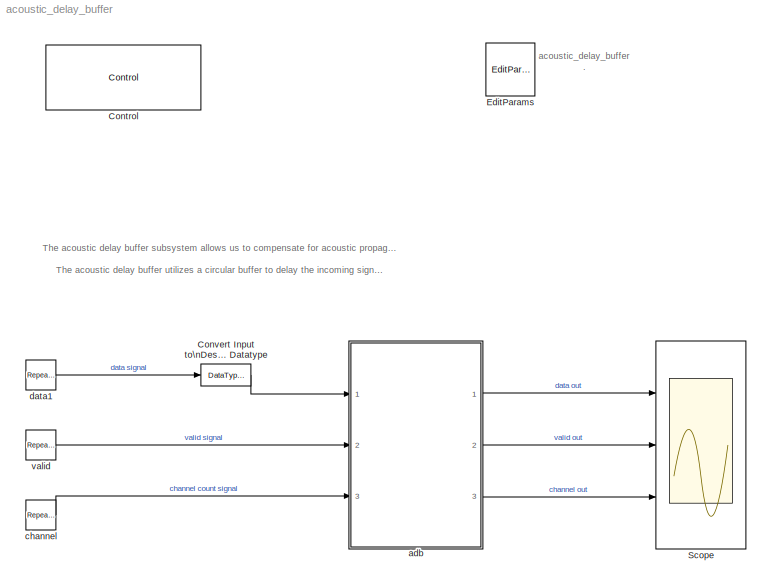
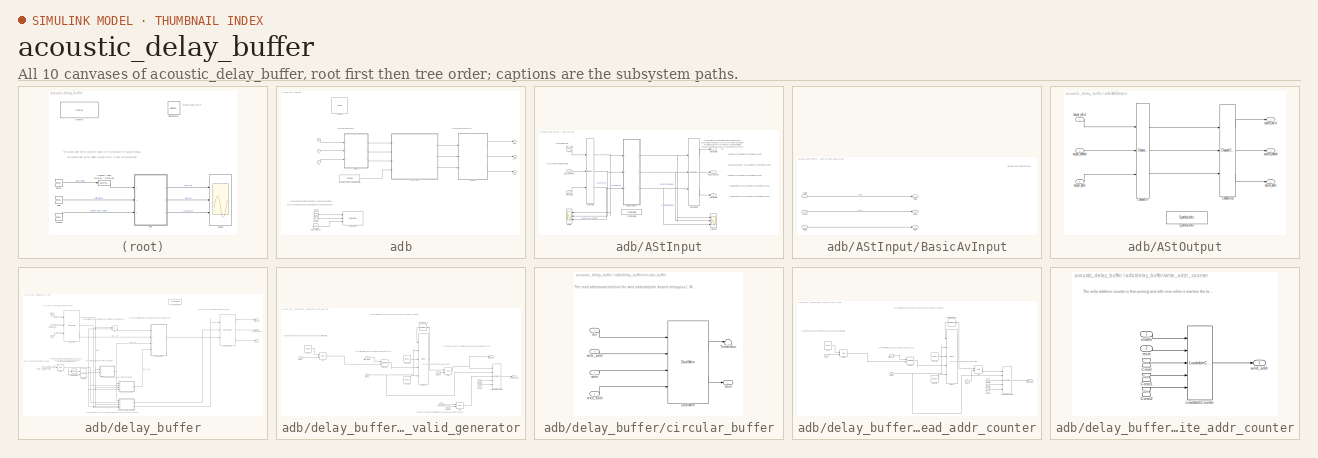
[diagram: thumbnail index - all 10 canvases of the model, root first then tree order]
MODEL acoustic_delay_buffer
KIND model
CONFIG InitFcn = % Run the setup script again just before the \n% model is run, so that any updates made\n% after opening are applied. \nsetup_acoustic_delay_buffer; 
CONFIG PreLoadFcn = % Run the setup script when the model is opened\nsetup_acoustic_delay_buffer; 
BLOCK [Reference] Control  REF=DSPBABase/Control
  MultiThreadCoSim = auto
  Ports = []
  SID = 3
  SourceBlock = DSPBABase/Control
  SourceType = DSP Builder Advanced Blockset Control Block
  addrwidth = 10
  autotestbench = off
  coveragetestbench = off
  cycleAccurate = off
  dataendian = Big Endian
  datawidth = 16
  destination = ./rtl
  destination_gui = ./rtl
  distRamThresholdBits = -1
  errorOnChanMismatch = on
  errorOnGPIOMismatch = off
  floatMismatchTolerance = -1.0
  floatMismatchZeroTolerance = -1.0
  generate = on
  hardMultiplierThresholdLuts = -1
  hierarchicalnames = off
  importModelsimResults = 0
  language = VHDL
  logs = off
  make_full_path = off
  mlabThresholdBits = -1
  paramFile = acoustic_delay_buffer_params.xml
  path_is_relative = on
  quartus_work = ../rtl
  quartus_work_gui = ../rtl
  ramThresholdBits = -1
  reinterpretCastMult = off
  signaldepth = 2
  spacenum = 1
  spacewidth = 2
  version = 20090407
BLOCK [DataTypeConversion] Convert Input to\nDesired Datatype
  OutDataTypeStr = fixdt(1,acoustic_delay_buffer_param.input_word_length,acoustic_delay_buffer_param.input_fraction_length)
  RndMeth = Floor
  SID = 4
BLOCK [Reference] EditParams  REF=DSPBABase/EditParams
  Ports = []
  SID = 5
  SourceBlock = DSPBABase/EditParams
  SourceType = DSP Builder Advanced Blockset Ignored Block
  version = 20090407
BLOCK [Scope] Scope
  Floating = off
  NumInputPorts = 3
  Ports = [3]
  SID = 207
  ScopeSpecificationString = Simulink.scopes.TimeScopeBlockCfg('CurrentConfiguration', extmgr.ConfigurationSet(extmgr.Configuration('Core','General UI',true),extmgr.Configuration('Core','Source UI',true),extmgr.Configuration('Sources','WiredSimulink',true),extmgr.Configuration('Visuals','Time Domain',true),extmgr.Configuration('Tools','Plot Navigation',true),extmgr.Configuration('Tools','Measurements',true)),'Version','2018b'...<+1ch>
BLOCK [SubSystem] adb
  Ports = [3, 3]
  RequestExecContextInheritance = off
  SID = 16
  TreatAsAtomicUnit = on
BLOCK [SubSystem] adb/AStInput
  AncestorBlock = DSPBAAvalonST/AStInput
  InitFcn = warning('off','Simulink:Commands:LoadMdlParameterizedLink');
  Ports = [3, 3]
  RequestExecContextInheritance = off
  SID = 101
  StopFcn = warning('on','Simulink:Commands:LoadMdlParameterizedLink');
BLOCK [SubSystem] adb/AStInput/BasicAvInput
  Ports = [3, 3]
  RequestExecContextInheritance = off
  SID = 101:418
BLOCK [Outport] adb/AStInput/BasicAvInput/ichan
  IconDisplay = Port number
  Port = 2
  SID = 101:470
BLOCK [Outport] adb/AStInput/BasicAvInput/idata
  IconDisplay = Port number
  Port = 3
  SID = 101:471
BLOCK [Outport] adb/AStInput/BasicAvInput/ivalid
  IconDisplay = Port number
  SID = 101:469
BLOCK [Inport] adb/AStInput/BasicAvInput/schan
  IconDisplay = Port number
  Port = 2
  SID = 101:420
BLOCK [Inport] adb/AStInput/BasicAvInput/sdata
  IconDisplay = Port number
  Port = 3
  SID = 101:422
BLOCK [Inport] adb/AStInput/BasicAvInput/svalid
  IconDisplay = Port number
  SID = 101:419
BLOCK [Reference] adb/AStInput/ChannelIn  REF=DSPBAPrim/ChannelIn
  MultiThreadCoSim = auto
  Ports = [3, 3]
  SID = 101:482
  SourceBlock = DSPBAPrim/ChannelIn
  SourceType = DSP Builder Advanced Blockset primitive
  channels = 1
  dataSignals = 1
  dspbaimage = dspba_prim.jpg
  factor = 1
  foldingEnabled = off
  inPortNames = ['v'; 'c'; '0'; '1'; '2'; '3'; '4'; '5'; '6'; '7'; '8'; '9'; 'A'; 'B'; 'D'; 'E'; 'F'; 'G'; 'H'; 'I'; 'J'; 'K'; 'L'; 'M'; 'N'; 'O'; 'P'; 'Q'; 'R'; 'S'; 'T'; 'U'; 'W'; 'X'; 'Y'; 'Z']
  latencyCorrection = 0
  nInputs = dspba_internal_get_channel_ports(gcb)
  nOutputs = dspba_internal_get_channel_ports(gcb)
  omode = Inherit via internal rule
  otype = sfix(16)
  outPortNames = ['v'; 'c'; '0'; '1'; '2'; '3'; '4'; '5'; '6'; '7'; '8'; '9'; 'A'; 'B'; 'D'; 'E'; 'F'; 'G'; 'H'; 'I'; 'J'; 'K'; 'L'; 'M'; 'N'; 'O'; 'P'; 'Q'; 'R'; 'S'; 'T'; 'U'; 'W'; 'X'; 'Y'; 'Z']
  packetBeginEnabled = off
  packetBeginPresent = off
  primtype = channelin
  rndmethod = Unbiased
  sampleRate = 200
  satmethod = Symmetric
  scale = 2^-15
  scheduleOrigin = on
  shift_vec = [0 1 2 -1]
  style = Optimised
  text = fprintf('In');
  value = 1
  version = 20141013
  visibilities = dspba_ChannelInVis(gcb)
BLOCK [Reference] adb/AStInput/ChannelOut  REF=DSPBAPrim/ChannelOut
  MultiThreadCoSim = auto
  Ports = [3, 3]
  SID = 101:483
  SourceBlock = DSPBAPrim/ChannelOut
  SourceType = DSP Builder Advanced Blockset primitive
  channels = 1
  dataSignals = 1
  dspbaimage = dspba_prim.jpg
  factor = 1
  foldingEnabled = off
  inPortNames = ['v'; 'c'; '0'; '1'; '2'; '3'; '4'; '5'; '6'; '7'; '8'; '9'; 'A'; 'B'; 'D'; 'E'; 'F'; 'G'; 'H'; 'I'; 'J'; 'K'; 'L'; 'M'; 'N'; 'O'; 'P'; 'Q'; 'R'; 'S'; 'T'; 'U'; 'W'; 'X'; 'Y'; 'Z']
  latency = 0
  latencyCorrection = 0
  nInputs = dspba_internal_get_channel_ports(gcb)
  nOutputs = dspba_internal_get_channel_ports(gcb)
  omode = Inherit via internal rule
  otype = sfix(16)
  outPortNames = ['v'; 'c'; '0'; '1'; '2'; '3'; '4'; '5'; '6'; '7'; '8'; '9'; 'A'; 'B'; 'D'; 'E'; 'F'; 'G'; 'H'; 'I'; 'J'; 'K'; 'L'; 'M'; 'N'; 'O'; 'P'; 'Q'; 'R'; 'S'; 'T'; 'U'; 'W'; 'X'; 'Y'; 'Z']
  packetBeginEnabled = off
  packetBeginPresent = off
  primtype = channelout
  rndmethod = Unbiased
  sampleRate = 200
  satmethod = Symmetric
  scale = 2^-15
  shift_vec = [0 1 2 -1]
  style = Optimised
  text = fprintf('Out%s', AdvDSPBChannelOutDisplay(latency));
  value = 1
  version = 20141013
  visibilities = dspba_ChannelOutVis(gcb)
BLOCK [Scope] adb/AStInput/Inputs
  Floating = off
  NumInputPorts = 3
  Ports = [3]
  SID = 101:485
  ScopeSpecificationString = C++SS(StrPVP('Location','[269, 186, 1069, 1038]'),StrPVP('Open','off'),StrPVP('ZoomMode','yonly'),MxPVP('AxesTitles',53,'struct(''axes1'',''%<SignalLabel>'',''axes2'',''%<SignalLabel>'',''axes3'',''%<SignalLabel>'')'),MxPVP('ScopeGraphics',56,'struct(''FigureColor'',''[0.156862745098039 0.156862745098039 0.156862745098039]'',''AxesColor'',''[0 0 0]'',''AxesTickColor'',''[0.686274509803922 0.686274...<+487ch>
BLOCK [Scope] adb/AStInput/Latched
  Floating = off
  NumInputPorts = 3
  Ports = [3]
  SID = 101:486
  ScopeSpecificationString = C++SS(StrPVP('Location','[5, 48, 1605, 1159]'),StrPVP('Open','off'),MxPVP('AxesTitles',53,'struct(''axes1'',''%<SignalLabel>'',''axes2'',''%<SignalLabel>'',''axes3'',''%<SignalLabel>'')'),MxPVP('ScopeGraphics',56,'struct(''FigureColor'',''[0.156862745098039 0.156862745098039 0.156862745098039]'',''AxesColor'',''[0 0 0]'',''AxesTickColor'',''[0.686274509803922 0.686274509803922 0.686274509803922]''...<+458ch>
BLOCK [Reference] adb/AStInput/SynthesisInfo  REF=DSPBAPrim/SynthesisInfo
  MultiThreadCoSim = auto
  Ports = []
  SID = 101:487
  SourceBlock = DSPBAPrim/SynthesisInfo
  SourceType = DSP Builder Advanced Blockset primitive
  bitAccurate = off
  constraintInUse = on
  constraintLimit = 0
  constraintRelation = =
  dspbaimage = dspba_prim_ctrl.jpg
  factor = 1
  inPortNames = [' '; ' ';]
  nInputs = 0
  nOutputs = 0
  omode = Inherit via internal rule
  otype = sfix(16)
  outPortNames = [' ']
  primtype = synthinfo
  rndmethod = Truncate
  satmethod = Symmetric
  scale = 2^-15
  shift_vec = [0 1 2 -1]
  style = Scheduled
  text = fprintf('Style=%s', style);
  value = 99
  version = 20150220
  visibilities = 32768
BLOCK [Outport] adb/AStInput/input_channel
  AttributesFormatString = %<Tag>
  IconDisplay = Port number
  Port = 2
  SID = 101:490
  Tag = channel
BLOCK [Outport] adb/AStInput/input_data
  AttributesFormatString = %<Tag>
  IconDisplay = Port number
  Port = 3
  SID = 101:491
  Tag = data
BLOCK [Outport] adb/AStInput/input_valid
  AttributesFormatString = %<Tag>
  IconDisplay = Port number
  SID = 101:489
  Tag = valid
BLOCK [Inport] adb/AStInput/sink_channel
  AttributesFormatString = %<Tag>
  IconDisplay = Port number
  Port = 2
  SID = 101:414
  Tag = channel
BLOCK [Inport] adb/AStInput/sink_data
  AttributesFormatString = %<Tag>
  IconDisplay = Port number
  Port = 3
  SID = 101:415
  Tag = data
BLOCK [Inport] adb/AStInput/sink_valid
  AttributesFormatString = %<Tag>
  IconDisplay = Port number
  SID = 101:413
  Tag = valid
BLOCK [SubSystem] adb/AStOutput
  AncestorBlock = DSPBAAvalonST/AStOutput
  InitFcn = warning('off','Simulink:Commands:LoadMdlParameterizedLink');
  Ports = [3, 3]
  RequestExecContextInheritance = off
  SID = 102
  StopFcn = warning('on','Simulink:Commands:LoadMdlParameterizedLink');
BLOCK [Reference] adb/AStOutput/ChannelIn  REF=DSPBAPrim/ChannelIn
  MultiThreadCoSim = auto
  Ports = [3, 3]
  SID = 102:344
  SourceBlock = DSPBAPrim/ChannelIn
  SourceType = DSP Builder Advanced Blockset primitive
  channels = 1
  dataSignals = 1
  dspbaimage = dspba_prim.jpg
  factor = 1
  foldingEnabled = off
  inPortNames = ['v'; 'c'; '0'; '1'; '2'; '3'; '4'; '5'; '6'; '7'; '8'; '9'; 'A'; 'B'; 'D'; 'E'; 'F'; 'G'; 'H'; 'I'; 'J'; 'K'; 'L'; 'M'; 'N'; 'O'; 'P'; 'Q'; 'R'; 'S'; 'T'; 'U'; 'W'; 'X'; 'Y'; 'Z']
  latencyCorrection = 0
  nInputs = dspba_internal_get_channel_ports(gcb)
  nOutputs = dspba_internal_get_channel_ports(gcb)
  omode = Inherit via internal rule
  otype = sfix(16)
  outPortNames = ['v'; 'c'; '0'; '1'; '2'; '3'; '4'; '5'; '6'; '7'; '8'; '9'; 'A'; 'B'; 'D'; 'E'; 'F'; 'G'; 'H'; 'I'; 'J'; 'K'; 'L'; 'M'; 'N'; 'O'; 'P'; 'Q'; 'R'; 'S'; 'T'; 'U'; 'W'; 'X'; 'Y'; 'Z']
  packetBeginEnabled = off
  packetBeginPresent = off
  primtype = channelin
  rndmethod = Unbiased
  sampleRate = 200
  satmethod = Symmetric
  scale = 2^-15
  scheduleOrigin = on
  shift_vec = [0 1 2 -1]
  style = Optimised
  text = fprintf('In');
  value = 1
  version = 20141013
  visibilities = dspba_ChannelInVis(gcb)
BLOCK [Reference] adb/AStOutput/ChannelOut  REF=DSPBAPrim/ChannelOut
  MultiThreadCoSim = auto
  Ports = [3, 3]
  SID = 102:345
  SourceBlock = DSPBAPrim/ChannelOut
  SourceType = DSP Builder Advanced Blockset primitive
  channels = 1
  dataSignals = 1
  dspbaimage = dspba_prim.jpg
  factor = 1
  foldingEnabled = off
  inPortNames = ['v'; 'c'; '0'; '1'; '2'; '3'; '4'; '5'; '6'; '7'; '8'; '9'; 'A'; 'B'; 'D'; 'E'; 'F'; 'G'; 'H'; 'I'; 'J'; 'K'; 'L'; 'M'; 'N'; 'O'; 'P'; 'Q'; 'R'; 'S'; 'T'; 'U'; 'W'; 'X'; 'Y'; 'Z']
  latency = 0
  latencyCorrection = 0
  nInputs = dspba_internal_get_channel_ports(gcb)
  nOutputs = dspba_internal_get_channel_ports(gcb)
  omode = Inherit via internal rule
  otype = sfix(16)
  outPortNames = ['v'; 'c'; '0'; '1'; '2'; '3'; '4'; '5'; '6'; '7'; '8'; '9'; 'A'; 'B'; 'D'; 'E'; 'F'; 'G'; 'H'; 'I'; 'J'; 'K'; 'L'; 'M'; 'N'; 'O'; 'P'; 'Q'; 'R'; 'S'; 'T'; 'U'; 'W'; 'X'; 'Y'; 'Z']
  packetBeginEnabled = off
  packetBeginPresent = off
  primtype = channelout
  rndmethod = Unbiased
  sampleRate = 200
  satmethod = Symmetric
  scale = 2^-15
  shift_vec = [0 1 2 -1]
  style = Optimised
  text = fprintf('Out%s', AdvDSPBChannelOutDisplay(latency));
  value = 1
  version = 20141013
  visibilities = dspba_ChannelOutVis(gcb)
BLOCK [Reference] adb/AStOutput/SynthesisInfo  REF=DSPBAPrim/SynthesisInfo
  MultiThreadCoSim = auto
  Ports = []
  SID = 102:348
  SourceBlock = DSPBAPrim/SynthesisInfo
  SourceType = DSP Builder Advanced Blockset primitive
  bitAccurate = off
  constraintInUse = on
  constraintLimit = 0
  constraintRelation = =
  dspbaimage = dspba_prim_ctrl.jpg
  factor = 1
  inPortNames = [' '; ' ';]
  nInputs = 0
  nOutputs = 0
  omode = Inherit via internal rule
  otype = sfix(16)
  outPortNames = [' ']
  primtype = synthinfo
  rndmethod = Truncate
  satmethod = Symmetric
  scale = 2^-15
  shift_vec = [0 1 2 -1]
  style = Scheduled
  text = fprintf('Style=%s', style);
  value = 99
  version = 20150220
  visibilities = 32768
BLOCK [Inport] adb/AStOutput/output_channel
  AttributesFormatString = %<Tag>
  IconDisplay = Port number
  Port = 2
  SID = 102:338
  Tag = channel
BLOCK [Inport] adb/AStOutput/output_data
  AttributesFormatString = %<Tag>
  IconDisplay = Port number
  Port = 3
  SID = 102:339
  Tag = data
BLOCK [Inport] adb/AStOutput/output_valid
  AttributesFormatString = %<Tag>
  IconDisplay = Port number
  SID = 102:337
  Tag = valid
BLOCK [Outport] adb/AStOutput/source_channel
  AttributesFormatString = %<Tag>
  IconDisplay = Port number
  Port = 2
  SID = 102:365
  Tag = channel
BLOCK [Outport] adb/AStOutput/source_data
  AttributesFormatString = %<Tag>
  IconDisplay = Port number
  Port = 3
  SID = 102:366
  Tag = data
BLOCK [Outport] adb/AStOutput/source_valid
  AttributesFormatString = %<Tag>
  IconDisplay = Port number
  SID = 102:364
  Tag = valid
BLOCK [Reference] adb/Const6  REF=DSPBAPrim/Const
  Commented = on
  MultiThreadCoSim = auto
  Ports = [0, 1]
  SID = 149
  SourceBlock = DSPBAPrim/Const
  SourceType = DSP Builder Advanced Blockset primitive
  dspbaimage = dspba_prim.jpg
  factor = 1
  floatPrecision = float32_m23
  inPortNames = ['+'; '+';]
  nInputs = 0
  nOutputs = 1
  omode = Inherit via internal rule
  otype = sfix(16)
  outPortNames = [' ']
  primtype = const
  rndmethod = Unbiased
  satmethod = Symmetric
  scale = 2^-15
  shift_vec = [0 1 2 -1]
  style = Optimised
  text = fprintf('%s', num2str(value));
  value = 0
  version = 20120820
  visibilities = 8 + 1024
BLOCK [Reference] adb/Const7  REF=DSPBAPrim/Const
  Commented = on
  MultiThreadCoSim = auto
  Ports = [0, 1]
  SID = 154
  SourceBlock = DSPBAPrim/Const
  SourceType = DSP Builder Advanced Blockset primitive
  dspbaimage = dspba_prim.jpg
  factor = 1
  floatPrecision = float32_m23
  inPortNames = ['+'; '+';]
  nInputs = 0
  nOutputs = 1
  omode = Inherit via back propagation
  otype = ufix(12)
  outPortNames = [' ']
  primtype = const
  rndmethod = Unbiased
  satmethod = Symmetric
  scale = 2^-15
  shift_vec = [0 1 2 -1]
  style = Optimised
  text = fprintf('%s', num2str(value));
  value = 5
  version = 20120820
  visibilities = 8 + 1024
BLOCK [Reference] adb/Device  REF=DSPBABase/Device
  Ports = []
  SID = 21
  SourceBlock = DSPBABase/Device
  SourceType = DSP Builder Advanced Blockset Device Block
  arria2Speed = -4
  arria2gzSpeed = -3
  arria5Speed = -4
  arriaSpeed = -6
  cyclone2Speed = -6
  cyclone3Speed = -7
  cyclone3lsSpeed = -7
  cyclone4eSpeed = -8
  cyclone5Speed = -6
  device = AUTO
  deviceMember = Stratix IV GX
  ecp2Speed = -7
  family = Arria 10
  hardcopy4device = HardCopy IV E
  hardcopycompat = off
  max10flashmode = off
  max10nomeminit = off
  nightFurySpeed = -2
  speed = -2
  stratix2Speed = -3
  stratix3Speed = -3
  stratix4device = Stratix IV GX
  stratix4gtSpeed = -1
  stratix4gxSpeed = -2
  stratix5Speed = -3
  stratix5device = Stratix V GX
  stratixSpeed = -5
  version = 20140217
BLOCK [Reference] adb/SharedMem  REF=DSPBAModelBus/SharedMem
  Commented = on
  MultiThreadCoSim = auto
  Ports = [3, 1]
  SID = 148
  SampleTime = -1
  SourceBlock = DSPBAModelBus/SharedMem
  SourceType = DSP Builder Advanced Blockset SharedMem
  mem_addr = 0
  mem_data = 0
  mem_desc = Number of samples of delay to compensate for acoustic propagation delay
  mem_init = on
  mem_mode = Specify via dialog
  mem_rwmode = Read/Write
  mem_scale = 1
  mem_type = ufix(acoustic_delay_buffer_param.addr_size)
  version = 20090407
BLOCK [Reference] adb/acoustic_delay_compensation  REF=DSPBAModelBus/RegField
  MultiThreadCoSim = auto
  Ports = [0, 1]
  SID = 208
  SampleTime = -1
  SourceBlock = DSPBAModelBus/RegField
  SourceType = DSP Builder Advanced Blockset RegField
  reg_addr = 0
  reg_desc = Number of samples of delay to compensate for acoustic propagation delay
  reg_desc0 = 0
  reg_desc1 = 0
  reg_desc2 = 0
  reg_desc3 = 0
  reg_desc4 = 0
  reg_desc5 = 0
  reg_desc6 = 0
  reg_desc7 = 0
  reg_init = 0
  reg_lsb = 0
  reg_modal = off
  reg_mode = Specify via dialog
  reg_msb = acoustic_delay_buffer_param.addr_size - 1
  reg_name = 0
  reg_rwmode = Read/Write
  reg_scale = 1
  reg_type = ufix(acoustic_delay_buffer_param.addr_size)
  version = 20090407
BLOCK [Inport] adb/c
  IconDisplay = Port number
  Port = 3
  SID = 19
BLOCK [Outport] adb/cout
  IconDisplay = Port number
  Port = 3
  SID = 28
BLOCK [Inport] adb/d
  IconDisplay = Port number
  SID = 17
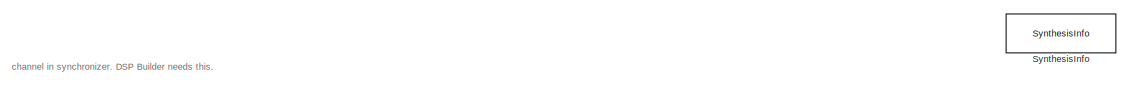
[diagram: adb/delay_buffer - part 1/3, top center region]
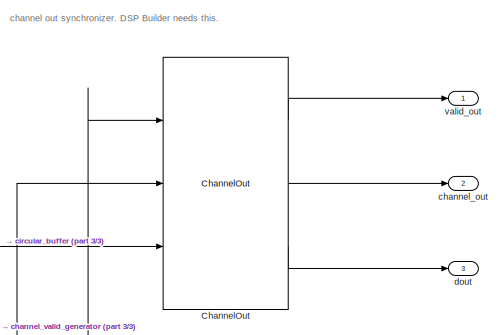
[diagram: adb/delay_buffer - part 2/3, top right region]
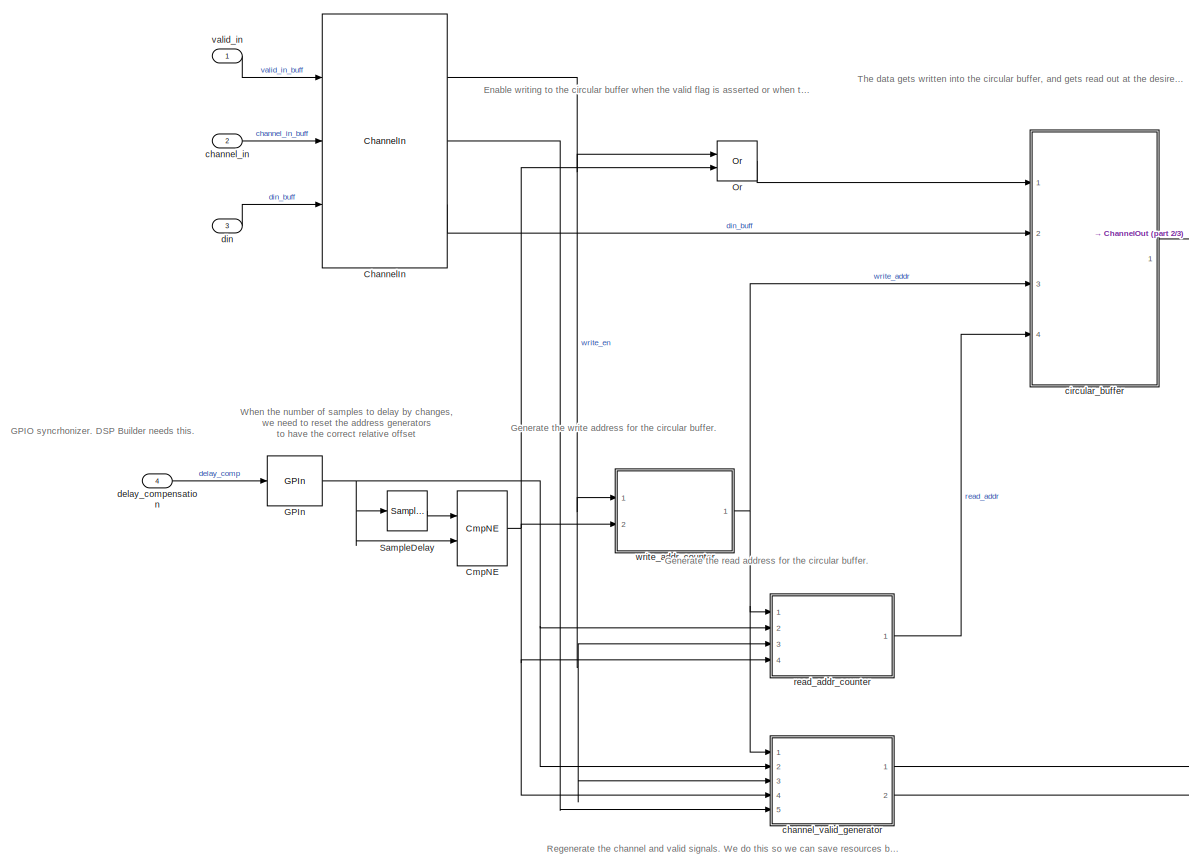
[diagram: adb/delay_buffer - part 3/3, left side, full height]
BLOCK [SubSystem] adb/delay_buffer
  Ports = [4, 3]
  RequestExecContextInheritance = off
  SID = 44
BLOCK [Reference] adb/delay_buffer/ChannelIn  REF=DSPBAPrim/ChannelIn
  MultiThreadCoSim = auto
  Ports = [3, 3]
  SID = 59
  SourceBlock = DSPBAPrim/ChannelIn
  SourceType = DSP Builder Advanced Blockset primitive
  channels = 1
  dataSignals = 1
  dspbaimage = dspba_prim.jpg
  factor = 1
  foldingEnabled = off
  inPortNames = ['v'; 'c'; '0'; '1'; '2'; '3'; '4'; '5'; '6'; '7'; '8'; '9'; 'A'; 'B'; 'D'; 'E'; 'F'; 'G'; 'H'; 'I'; 'J'; 'K'; 'L'; 'M'; 'N'; 'O'; 'P'; 'Q'; 'R'; 'S'; 'T'; 'U'; 'W'; 'X'; 'Y'; 'Z']
  latencyCorrection = 0
  nInputs = dspba_internal_get_channel_ports(gcb)
  nOutputs = dspba_internal_get_channel_ports(gcb)
  omode = Inherit via internal rule
  otype = sfix(16)
  outPortNames = ['v'; 'c'; '0'; '1'; '2'; '3'; '4'; '5'; '6'; '7'; '8'; '9'; 'A'; 'B'; 'D'; 'E'; 'F'; 'G'; 'H'; 'I'; 'J'; 'K'; 'L'; 'M'; 'N'; 'O'; 'P'; 'Q'; 'R'; 'S'; 'T'; 'U'; 'W'; 'X'; 'Y'; 'Z']
  packetBeginEnabled = off
  packetBeginPresent = off
  primtype = channelin
  rndmethod = Unbiased
  sampleRate = 200
  satmethod = Symmetric
  scale = 2^-15
  scheduleOrigin = on
  shift_vec = [0 1 2 -1]
  style = Optimised
  text = fprintf('In');
  value = 1
  version = 20141013
  visibilities = dspba_ChannelInVis(gcb)
BLOCK [Reference] adb/delay_buffer/ChannelOut  REF=DSPBAPrim/ChannelOut
  MultiThreadCoSim = auto
  Ports = [3, 3]
  SID = 60
  SourceBlock = DSPBAPrim/ChannelOut
  SourceType = DSP Builder Advanced Blockset primitive
  channels = 1
  dataSignals = 1
  dspbaimage = dspba_prim.jpg
  factor = 1
  foldingEnabled = off
  inPortNames = ['v'; 'c'; '0'; '1'; '2'; '3'; '4'; '5'; '6'; '7'; '8'; '9'; 'A'; 'B'; 'D'; 'E'; 'F'; 'G'; 'H'; 'I'; 'J'; 'K'; 'L'; 'M'; 'N'; 'O'; 'P'; 'Q'; 'R'; 'S'; 'T'; 'U'; 'W'; 'X'; 'Y'; 'Z']
  latency = 6
  latencyCorrection = 0
  nInputs = dspba_internal_get_channel_ports(gcb)
  nOutputs = dspba_internal_get_channel_ports(gcb)
  omode = Inherit via internal rule
  otype = sfix(16)
  outPortNames = ['v'; 'c'; '0'; '1'; '2'; '3'; '4'; '5'; '6'; '7'; '8'; '9'; 'A'; 'B'; 'D'; 'E'; 'F'; 'G'; 'H'; 'I'; 'J'; 'K'; 'L'; 'M'; 'N'; 'O'; 'P'; 'Q'; 'R'; 'S'; 'T'; 'U'; 'W'; 'X'; 'Y'; 'Z']
  packetBeginEnabled = off
  packetBeginPresent = off
  primtype = channelout
  rndmethod = Unbiased
  sampleRate = 200
  satmethod = Symmetric
  scale = 2^-15
  shift_vec = [0 1 2 -1]
  style = Optimised
  text = fprintf('Out%s', AdvDSPBChannelOutDisplay(latency));
  value = 1
  version = 20141013
  visibilities = dspba_ChannelOutVis(gcb)
BLOCK [Reference] adb/delay_buffer/CmpNE  REF=DSPBAPrim/CmpNE
  MultiThreadCoSim = auto
  Ports = [2, 1]
  SID = 128
  SourceBlock = DSPBAPrim/CmpNE
  SourceType = DSP Builder Advanced Blockset primitive
  advOptions = []
  dspbaimage = dspba_prim.jpg
  factor = 1
  inPortNames = [' '; ' ';]
  nInputs = 2
  nOutputs = 1
  omode = boolean
  otype = sfix(16)
  outPortNames = [' ']
  primtype = cmpne
  rndmethod = Unbiased
  satmethod = Symmetric
  scale = 2^-15
  shift_vec = [0 1 2 -1]
  style = Optimised
  text = fprintf('~=');
  value = 0
  version = 20130117
  visibilities = 0
BLOCK [Reference] adb/delay_buffer/GPIn  REF=DSPBAPrim/GPIn
  MultiThreadCoSim = auto
  Ports = [1, 1]
  SID = 99
  SourceBlock = DSPBAPrim/GPIn
  SourceType = DSP Builder Advanced Blockset primitive
  dspbaimage = dspba_prim.jpg
  factor = 1
  inPortNames = [' ' ' ' ' ' ' ' ' ' ' ' ' ' ' ' ' ' ' ' ' ' ' ' ' ' ' ' ' ' ' ' ' ' ' ' ' ' ' ' ' ' ' ' ' ' ' ' ' ' ' ' ' ' ' ' ' ' ' ' ' ' ' ' ' ' ' ' ' ']'
  latencyCorrection = 0
  nInputs = evalAionMaskParam(gcb,'value',1)
  nOutputs = evalAionMaskParam(gcb,'value',1)
  omode = Inherit via internal rule
  otype = sfix(16)
  outPortNames = [' ' ' ' ' ' ' ' ' ' ' ' ' ' ' ' ' ' ' ' ' ' ' ' ' ' ' ' ' ' ' ' ' ' ' ' ' ' ' ' ' ' ' ' ' ' ' ' ' ' ' ' ' ' ' ' ' ' ' ' ' ' ' ' ' ' ' ' ' ']'
  primtype = gpin
  rndmethod = Unbiased
  satmethod = Symmetric
  scale = 2^-15
  scheduleOrigin = on
  shift_vec = [0 1 2 -1]
  style = Optimised
  text = fprintf('GPIn');
  value = 1
  version = 20090407
  visibilities = 1024
BLOCK [Reference] adb/delay_buffer/Or  REF=DSPBAPrim/Or
  MultiThreadCoSim = auto
  Ports = [2, 1]
  SID = 188
  SourceBlock = DSPBAPrim/Or
  SourceType = DSP Builder Advanced Blockset primitive
  dspbaimage = dspba_prim.jpg
  factor = 1
  inPortNames = [' '; ' '; ' '; ' '; ' '; ' '; ' '; ' '; ' '; ' '; ' '; ' '; ' '; ' '; ' '; ' '; ]
  nInputs = 2
  nOutputs = 1
  omode = Inherit via internal rule
  otype = sfix(16)
  outPortNames = [' ']
  primtype = or
  rndmethod = Unbiased
  satmethod = Symmetric
  scale = 2^-15
  shift_vec = [0 1 2 -1]
  style = Optimised
  text = fprintf('|');
  value = 0
  version = 20090407
  visibilities = 8+2
BLOCK [Reference] adb/delay_buffer/SampleDelay  REF=DSPBAPrim/SampleDelay
  MultiThreadCoSim = auto
  Ports = [1, 1]
  SID = 129
  SourceBlock = DSPBAPrim/SampleDelay
  SourceType = DSP Builder Advanced Blockset primitive
  advOptions = []
  augmented = 0
  dspbaimage = dspba_prim.jpg
  factor = 1
  flexible = off
  inPortNames = [' '; ' ';]
  nInputs = 1
  nOutputs = 1
  omode = Inherit via internal rule
  otype = sfix(16)
  outPortNames = [' ']
  primtype = sampdelay
  rndmethod = Unbiased
  satmethod = Symmetric
  scale = 2^-15
  shift_vec = [0 1 2 -1]
  slackgroup = 0
  style = Optimised
  text = dpoly(1, eye(1,value+1), 'z')
  value = 1
  version = 20090407
  visibilities = 8 + 1024 + 2^17 + 2^18
BLOCK [Reference] adb/delay_buffer/SynthesisInfo  REF=DSPBAPrim/SynthesisInfo
  MultiThreadCoSim = auto
  Ports = []
  SID = 94
  SourceBlock = DSPBAPrim/SynthesisInfo
  SourceType = DSP Builder Advanced Blockset primitive
  bitAccurate = off
  constraintInUse = off
  constraintLimit = 2
  constraintRelation = >
  dspbaimage = dspba_prim_ctrl.jpg
  factor = 1
  inPortNames = [' '; ' ';]
  nInputs = 0
  nOutputs = 0
  omode = Inherit via internal rule
  otype = sfix(16)
  outPortNames = [' ']
  primtype = synthinfo
  rndmethod = Truncate
  satmethod = Symmetric
  scale = 2^-15
  shift_vec = [0 1 2 -1]
  style = Scheduled
  text = fprintf('Style=%s', style);
  value = 99
  version = 20150220
  visibilities = 2^17+2^18+2^19+2^20
BLOCK [Inport] adb/delay_buffer/channel_in
  IconDisplay = Port number
  Port = 2
  SID = 53
BLOCK [Outport] adb/delay_buffer/channel_out
  IconDisplay = Port number
  Port = 2
  SID = 55
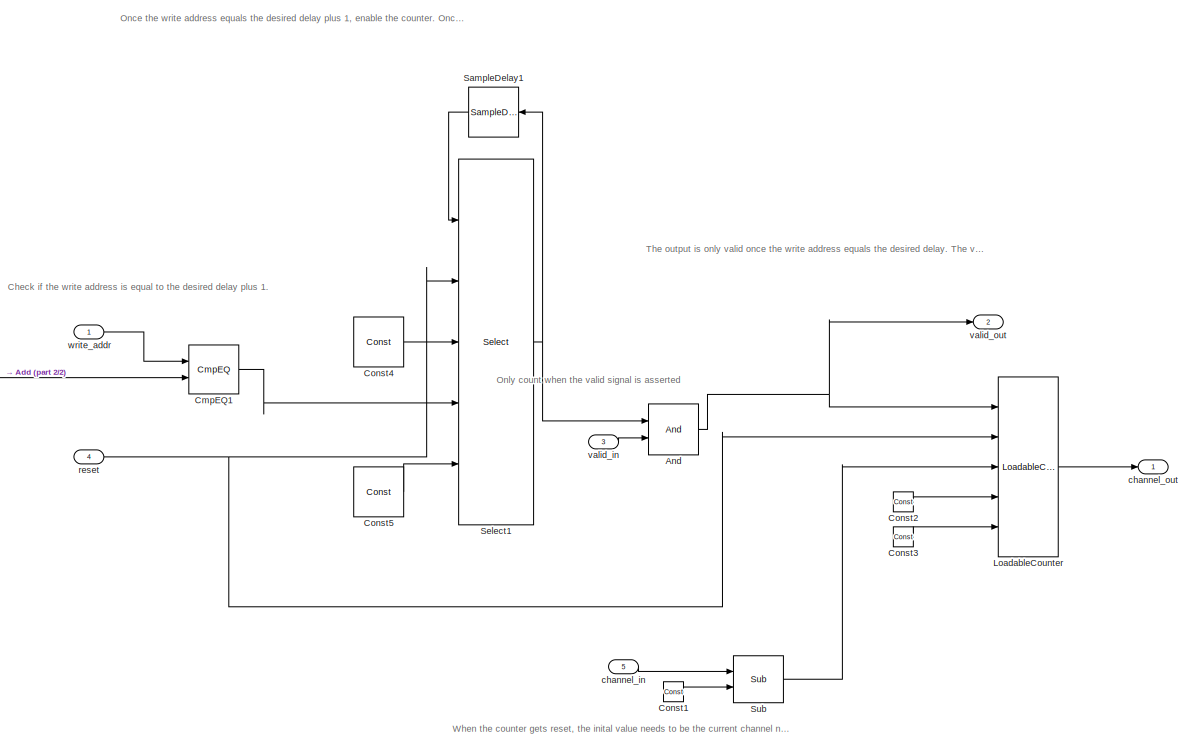
[diagram: adb/delay_buffer/channel_valid_generator - part 1/2, center side, full height]
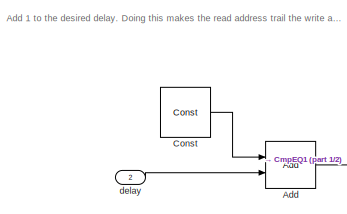
[diagram: adb/delay_buffer/channel_valid_generator - part 2/2, middle left region]
BLOCK [SubSystem] adb/delay_buffer/channel_valid_generator
  Ports = [5, 2]
  RequestExecContextInheritance = off
  SID = 83
BLOCK [Reference] adb/delay_buffer/channel_valid_generator/Add  REF=DSPBAPrim/Add
  MultiThreadCoSim = auto
  Ports = [2, 1]
  SID = 195
  SourceBlock = DSPBAPrim/Add
  SourceType = DSP Builder Advanced Blockset primitive
  advOptions = []
  dspbaimage = dspba_prim.jpg
  factor = 1
  floatRounding = correct
  genFPC = off
  inPortNames = [' '; ' ';]
  nInputs = evalAionMaskParam(gcb,'value',1)
  nOutputs = 1
  omode = Inherit via internal rule with word growth
  otype = sfix(16)
  outPortNames = [' ']
  primtype = add
  rndmethod = Unbiased
  satmethod = Symmetric
  scale = 2^-15
  shift_vec = [0 1 2 -1]
  style = Optimised
  text = fprintf('+');
  value = 2
  version = 20130821
  visibilities = 1032+2^17+2^18+2^19
BLOCK [Reference] adb/delay_buffer/channel_valid_generator/And  REF=DSPBAPrim/And
  MultiThreadCoSim = auto
  Ports = [2, 1]
  SID = 171
  SourceBlock = DSPBAPrim/And
  SourceType = DSP Builder Advanced Blockset primitive
  dspbaimage = dspba_prim.jpg
  factor = 1
  inPortNames = [' '; ' '; ' '; ' '; ' '; ' '; ' '; ' '; ' '; ' '; ' '; ' '; ' '; ' '; ' '; ' '; ]
  nInputs = 2
  nOutputs = 1
  omode = Inherit via internal rule
  otype = sfix(16)
  outPortNames = [' ']
  primtype = and
  rndmethod = Unbiased
  satmethod = Symmetric
  scale = 2^-15
  shift_vec = [0 1 2 -1]
  style = Optimised
  text = fprintf('&');
  value = 0
  version = 20090407
  visibilities = 8+2
BLOCK [Reference] adb/delay_buffer/channel_valid_generator/CmpEQ1  REF=DSPBAPrim/CmpEQ
  MultiThreadCoSim = auto
  Ports = [2, 1]
  SID = 172
  SourceBlock = DSPBAPrim/CmpEQ
  SourceType = DSP Builder Advanced Blockset primitive
  advOptions = []
  dspbaimage = dspba_prim.jpg
  factor = 1
  inPortNames = [' '; ' ';]
  nInputs = 2
  nOutputs = 1
  omode = boolean
  otype = sfix(16)
  outPortNames = [' ']
  primtype = cmpeq
  rndmethod = Unbiased
  satmethod = Symmetric
  scale = 2^-15
  shift_vec = [0 1 2 -1]
  style = Optimised
  text = fprintf('==');
  value = 0
  version = 20130117
  visibilities = 0
BLOCK [Reference] adb/delay_buffer/channel_valid_generator/Const  REF=DSPBAPrim/Const
  MultiThreadCoSim = auto
  Ports = [0, 1]
  SID = 197
  SourceBlock = DSPBAPrim/Const
  SourceType = DSP Builder Advanced Blockset primitive
  dspbaimage = dspba_prim.jpg
  factor = 1
  floatPrecision = float32_m23
  inPortNames = ['+'; '+';]
  nInputs = 0
  nOutputs = 1
  omode = Inherit via internal rule
  otype = sfix(16)
  outPortNames = [' ']
  primtype = const
  rndmethod = Unbiased
  satmethod = Symmetric
  scale = 2^-15
  shift_vec = [0 1 2 -1]
  style = Optimised
  text = fprintf('%s', num2str(value));
  value = 1
  version = 20120820
  visibilities = 8 + 1024
BLOCK [Reference] adb/delay_buffer/channel_valid_generator/Const1  REF=DSPBAPrim/Const
  MultiThreadCoSim = auto
  Ports = [0, 1]
  SID = 203
  SourceBlock = DSPBAPrim/Const
  SourceType = DSP Builder Advanced Blockset primitive
  dspbaimage = dspba_prim.jpg
  factor = 1
  floatPrecision = float32_m23
  inPortNames = ['+'; '+';]
  nInputs = 0
  nOutputs = 1
  omode = Specify via dialog
  otype = uint(8)
  outPortNames = [' ']
  primtype = const
  rndmethod = Unbiased
  satmethod = Symmetric
  scale = 1
  shift_vec = [0 1 2 -1]
  style = Optimised
  text = fprintf('%s', num2str(value));
  value = 1
  version = 20120820
  visibilities = 8 + 1024
BLOCK [Reference] adb/delay_buffer/channel_valid_generator/Const2  REF=DSPBAPrim/Const
  MultiThreadCoSim = auto
  Ports = [0, 1]
  SID = 144
  SourceBlock = DSPBAPrim/Const
  SourceType = DSP Builder Advanced Blockset primitive
  dspbaimage = dspba_prim.jpg
  factor = 1
  floatPrecision = float32_m23
  inPortNames = ['+'; '+';]
  nInputs = 0
  nOutputs = 1
  omode = Inherit via internal rule
  otype = sfix(16)
  outPortNames = [' ']
  primtype = const
  rndmethod = Unbiased
  satmethod = Symmetric
  scale = 2^-15
  shift_vec = [0 1 2 -1]
  style = Optimised
  text = fprintf('%s', num2str(value));
  value = 1
  version = 20120820
  visibilities = 8 + 1024
BLOCK [Reference] adb/delay_buffer/channel_valid_generator/Const3  REF=DSPBAPrim/Const
  MultiThreadCoSim = auto
  Ports = [0, 1]
  SID = 145
  SourceBlock = DSPBAPrim/Const
  SourceType = DSP Builder Advanced Blockset primitive
  dspbaimage = dspba_prim.jpg
  factor = 1
  floatPrecision = float32_m23
  inPortNames = ['+'; '+';]
  nInputs = 0
  nOutputs = 1
  omode = Inherit via internal rule
  otype = sfix(16)
  outPortNames = [' ']
  primtype = const
  rndmethod = Unbiased
  satmethod = Symmetric
  scale = 2^-15
  shift_vec = [0 1 2 -1]
  style = Optimised
  text = fprintf('%s', num2str(value));
  value = acoustic_delay_buffer_param.ChanCount
  version = 20120820
  visibilities = 8 + 1024
BLOCK [Reference] adb/delay_buffer/channel_valid_generator/Const4  REF=DSPBAPrim/Const
  MultiThreadCoSim = auto
  Ports = [0, 1]
  SID = 173
  SourceBlock = DSPBAPrim/Const
  SourceType = DSP Builder Advanced Blockset primitive
  dspbaimage = dspba_prim.jpg
  factor = 1
  floatPrecision = float32_m23
  inPortNames = ['+'; '+';]
  nInputs = 0
  nOutputs = 1
  omode = Inherit via internal rule
  otype = sfix(16)
  outPortNames = [' ']
  primtype = const
  rndmethod = Unbiased
  satmethod = Symmetric
  scale = 2^-15
  shift_vec = [0 1 2 -1]
  style = Optimised
  text = fprintf('%s', num2str(value));
  value = 0
  version = 20120820
  visibilities = 8 + 1024
BLOCK [Reference] adb/delay_buffer/channel_valid_generator/Const5  REF=DSPBAPrim/Const
  MultiThreadCoSim = auto
  Ports = [0, 1]
  SID = 174
  SourceBlock = DSPBAPrim/Const
  SourceType = DSP Builder Advanced Blockset primitive
  dspbaimage = dspba_prim.jpg
  factor = 1
  floatPrecision = float32_m23
  inPortNames = ['+'; '+';]
  nInputs = 0
  nOutputs = 1
  omode = Inherit via internal rule
  otype = sfix(16)
  outPortNames = [' ']
  primtype = const
  rndmethod = Unbiased
  satmethod = Symmetric
  scale = 2^-15
  shift_vec = [0 1 2 -1]
  style = Optimised
  text = fprintf('%s', num2str(value));
  value = 1
  version = 20120820
  visibilities = 8 + 1024
BLOCK [Reference] adb/delay_buffer/channel_valid_generator/LoadableCounter  REF=DSPBAPrim/LoadableCounter
  MultiThreadCoSim = auto
  Ports = [5, 1]
  SID = 142
  SourceBlock = DSPBAPrim/LoadableCounter
  SourceType = DSP Builder Advanced Blockset primitive
  dspbaimage = dspba_prim.jpg
  factor = 1
  inPortNames = ['en';'ld';'i ';'s ';'m ']
  nInputs = 5
  nOutputs = 1
  omode = Specify via dialog
  otype = ufix(8)
  outPortNames = [' ']
  primtype = loadablecounter
  rndmethod = Unbiased
  satmethod = Symmetric
  scale = 2^-0
  shift_vec = [0 1 2 -1]
  style = Optimised
  text = fprintf('loadable\\ncounter\\n[%d %d %d]', value(1), value(2), value(3));
  value = [acoustic_delay_buffer_param.ChanCount - 1 acoustic_delay_buffer_param.ChanCount 1]
  version = 20090407
  visibilities = 8 + 1024
BLOCK [Reference] adb/delay_buffer/channel_valid_generator/SampleDelay1  REF=DSPBAPrim/SampleDelay
  MultiThreadCoSim = auto
  Ports = [1, 1]
  SID = 175
  SourceBlock = DSPBAPrim/SampleDelay
  SourceType = DSP Builder Advanced Blockset primitive
  advOptions = []
  augmented = 0
  dspbaimage = dspba_prim.jpg
  factor = 1
  flexible = off
  inPortNames = [' '; ' ';]
  nInputs = 1
  nOutputs = 1
  omode = Inherit via internal rule
  otype = sfix(16)
  outPortNames = [' ']
  primtype = sampdelay
  rndmethod = Unbiased
  satmethod = Symmetric
  scale = 2^-15
  shift_vec = [0 1 2 -1]
  slackgroup = 0
  style = Optimised
  text = dpoly(1, eye(1,value+1), 'z')
  value = 1
  version = 20090407
  visibilities = 8 + 1024 + 2^17 + 2^18
BLOCK [Reference] adb/delay_buffer/channel_valid_generator/Select1  REF=DSPBAPrim/Select
  MultiThreadCoSim = auto
  Ports = [5, 1]
  SID = 176
  SourceBlock = DSPBAPrim/Select
  SourceType = DSP Builder Advanced Blockset primitive
  dspbaimage = dspba_prim.jpg
  factor = 1
  inPortNames = ['d'; '0'; 'a'; '1'; 'b'; '2'; 'c'; '3'; 'd'; '4'; 'e'; '5'; 'f'; '6'; 'g'; '7'; 'h'; '8'; 'i'; '9'; 'j']
  nInputs = str2num(get_param(gcb,'value'))*2+1
  nOutputs = 1
  omode = boolean
  otype = sfix(16)
  outPortNames = [' ']
  primtype = select
  rndmethod = Unbiased
  satmethod = Symmetric
  scale = 2^-15
  shift_vec = [0 1 2 -1]
  style = Optimised
  text = fprintf('%s', primtype);
  value = 2
  version = 20090407
  visibilities = 8 + 1024
BLOCK [Reference] adb/delay_buffer/channel_valid_generator/Sub  REF=DSPBAPrim/Sub
  MultiThreadCoSim = auto
  Ports = [2, 1]
  SID = 202
  SourceBlock = DSPBAPrim/Sub
  SourceType = DSP Builder Advanced Blockset primitive
  advOptions = []
  dspbaimage = dspba_prim.jpg
  factor = 1
  floatRounding = correct
  inPortNames = ['+'; '-';]
  nInputs = 2
  nOutputs = 1
  omode = Inherit via internal rule
  otype = sfix(16)
  outPortNames = [' ']
  primtype = sub
  rndmethod = Unbiased
  satmethod = Symmetric
  scale = 2^-15
  shift_vec = [0 1 2 -1]
  style = Optimised
  text = fprintf('-');
  value = 0
  version = 20130115
  visibilities = 8+2^17+2^18
BLOCK [Inport] adb/delay_buffer/channel_valid_generator/channel_in
  IconDisplay = Port number
  Port = 5
  SID = 146
BLOCK [Outport] adb/delay_buffer/channel_valid_generator/channel_out
  IconDisplay = Port number
  SID = 90
BLOCK [Inport] adb/delay_buffer/channel_valid_generator/delay
  IconDisplay = Port number
  Port = 2
  SID = 85
BLOCK [Inport] adb/delay_buffer/channel_valid_generator/reset
  IconDisplay = Port number
  Port = 4
  SID = 143
BLOCK [Inport] adb/delay_buffer/channel_valid_generator/valid_in
  IconDisplay = Port number
  Port = 3
  SID = 169
BLOCK [Outport] adb/delay_buffer/channel_valid_generator/valid_out
  IconDisplay = Port number
  Port = 2
  SID = 91
BLOCK [Inport] adb/delay_buffer/channel_valid_generator/write_addr
  IconDisplay = Port number
  SID = 84
BLOCK [SubSystem] adb/delay_buffer/circular_buffer
  Ports = [4, 1]
  RequestExecContextInheritance = off
  SID = 74
BLOCK [Reference] adb/delay_buffer/circular_buffer/DualMem  REF=DSPBAPrim/DualMem
  MultiThreadCoSim = auto
  Ports = [4, 2]
  SID = 43
  SourceBlock = DSPBAPrim/DualMem
  SourceType = DSP Builder Advanced Blockset primitive
  TwinWritePorts = off
  UseDontCare = on
  dspbaimage = dspba_prim.jpg
  factor = 1
  inPortNames = ['d1'; 'a1'; 'w1'; 'a2']
  nInputs = 4
  nOutputs = 2
  omode = Inherit via internal rule
  otype = sfix(16)
  outPortNames = ['q1'; 'q2']
  primtype = dualmem
  rndmethod = Unbiased
  satmethod = Symmetric
  scale = 2^-15
  shift_vec = [0 1 2 -1]
  style = Optimised
  text = fprintf('dmem%s',AdvDSPBDMemDisplay(UseDontCare));
  value = [zeros(acoustic_delay_buffer_param.buffer_size, 1)]
  version = 20141001
  visibilities = 8 + 1024 + 2^17 + 2^18
BLOCK [Terminator] adb/delay_buffer/circular_buffer/Terminator
  SID = 81
BLOCK [Inport] adb/delay_buffer/circular_buffer/din
  IconDisplay = Port number
  Port = 2
  SID = 76
BLOCK [Outport] adb/delay_buffer/circular_buffer/dout
  IconDisplay = Port number
  SID = 80
BLOCK [Inport] adb/delay_buffer/circular_buffer/read_addr
  IconDisplay = Port number
  Port = 4
  SID = 78
BLOCK [Inport] adb/delay_buffer/circular_buffer/write
  IconDisplay = Port number
  SID = 75
BLOCK [Inport] adb/delay_buffer/circular_buffer/write_addr
  IconDisplay = Port number
  Port = 3
  SID = 77
BLOCK [Inport] adb/delay_buffer/delay_compensation
  IconDisplay = Port number
  Port = 4
  SID = 58
BLOCK [Inport] adb/delay_buffer/din
  IconDisplay = Port number
  Port = 3
  SID = 45
BLOCK [Outport] adb/delay_buffer/dout
  IconDisplay = Port number
  Port = 3
  SID = 50
BLOCK [SubSystem] adb/delay_buffer/read_addr_counter
  Ports = [4, 1]
  RequestExecContextInheritance = off
  SID = 65
BLOCK [Reference] adb/delay_buffer/read_addr_counter/Add  REF=DSPBAPrim/Add
  MultiThreadCoSim = auto
  Ports = [2, 1]
  SID = 190
  SourceBlock = DSPBAPrim/Add
  SourceType = DSP Builder Advanced Blockset primitive
  advOptions = []
  dspbaimage = dspba_prim.jpg
  factor = 1
  floatRounding = correct
  genFPC = off
  inPortNames = [' '; ' ';]
  nInputs = evalAionMaskParam(gcb,'value',1)
  nOutputs = 1
  omode = Inherit via internal rule with word growth
  otype = sfix(16)
  outPortNames = [' ']
  primtype = add
  rndmethod = Unbiased
  satmethod = Symmetric
  scale = 2^-15
  shift_vec = [0 1 2 -1]
  style = Optimised
  text = fprintf('+');
  value = 2
  version = 20130821
  visibilities = 1032+2^17+2^18+2^19
BLOCK [Reference] adb/delay_buffer/read_addr_counter/And  REF=DSPBAPrim/And
  MultiThreadCoSim = auto
  Ports = [2, 1]
  SID = 117
  SourceBlock = DSPBAPrim/And
  SourceType = DSP Builder Advanced Blockset primitive
  dspbaimage = dspba_prim.jpg
  factor = 1
  inPortNames = [' '; ' '; ' '; ' '; ' '; ' '; ' '; ' '; ' '; ' '; ' '; ' '; ' '; ' '; ' '; ' '; ]
  nInputs = 2
  nOutputs = 1
  omode = Inherit via internal rule
  otype = sfix(16)
  outPortNames = [' ']
  primtype = and
  rndmethod = Unbiased
  satmethod = Symmetric
  scale = 2^-15
  shift_vec = [0 1 2 -1]
  style = Optimised
  text = fprintf('&');
  value = 0
  version = 20090407
  visibilities = 8+2
BLOCK [Reference] adb/delay_buffer/read_addr_counter/CmpEQ  REF=DSPBAPrim/CmpEQ
  MultiThreadCoSim = auto
  Ports = [2, 1]
  SID = 71
  SourceBlock = DSPBAPrim/CmpEQ
  SourceType = DSP Builder Advanced Blockset primitive
  advOptions = []
  dspbaimage = dspba_prim.jpg
  factor = 1
  inPortNames = [' '; ' ';]
  nInputs = 2
  nOutputs = 1
  omode = boolean
  otype = sfix(16)
  outPortNames = [' ']
  primtype = cmpeq
  rndmethod = Unbiased
  satmethod = Symmetric
  scale = 2^-15
  shift_vec = [0 1 2 -1]
  style = Optimised
  text = fprintf('==');
  value = 0
  version = 20130117
  visibilities = 0
BLOCK [Reference] adb/delay_buffer/read_addr_counter/Const  REF=DSPBAPrim/Const
  MultiThreadCoSim = auto
  Ports = [0, 1]
  SID = 191
  SourceBlock = DSPBAPrim/Const
  SourceType = DSP Builder Advanced Blockset primitive
  dspbaimage = dspba_prim.jpg
  factor = 1
  floatPrecision = float32_m23
  inPortNames = ['+'; '+';]
  nInputs = 0
  nOutputs = 1
  omode = Inherit via internal rule
  otype = sfix(16)
  outPortNames = [' ']
  primtype = const
  rndmethod = Unbiased
  satmethod = Symmetric
  scale = 2^-15
  shift_vec = [0 1 2 -1]
  style = Optimised
  text = fprintf('%s', num2str(value));
  value = 1
  version = 20120820
  visibilities = 8 + 1024
BLOCK [Reference] adb/delay_buffer/read_addr_counter/Const1  REF=DSPBAPrim/Const
  MultiThreadCoSim = auto
  Ports = [0, 1]
  SID = 115
  SourceBlock = DSPBAPrim/Const
  SourceType = DSP Builder Advanced Blockset primitive
  dspbaimage = dspba_prim.jpg
  factor = 1
  floatPrecision = float32_m23
  inPortNames = ['+'; '+';]
  nInputs = 0
  nOutputs = 1
  omode = Inherit via internal rule
  otype = sfix(16)
  outPortNames = [' ']
  primtype = const
  rndmethod = Unbiased
  satmethod = Symmetric
  scale = 2^-15
  shift_vec = [0 1 2 -1]
  style = Optimised
  text = fprintf('%s', num2str(value));
  value = 0
  version = 20120820
  visibilities = 8 + 1024
BLOCK [Reference] adb/delay_buffer/read_addr_counter/Const2  REF=DSPBAPrim/Const
  MultiThreadCoSim = auto
  Ports = [0, 1]
  SID = 135
  SourceBlock = DSPBAPrim/Const
  SourceType = DSP Builder Advanced Blockset primitive
  dspbaimage = dspba_prim.jpg
  factor = 1
  floatPrecision = float32_m23
  inPortNames = ['+'; '+';]
  nInputs = 0
  nOutputs = 1
  omode = Inherit via internal rule
  otype = sfix(16)
  outPortNames = [' ']
  primtype = const
  rndmethod = Unbiased
  satmethod = Symmetric
  scale = 2^-15
  shift_vec = [0 1 2 -1]
  style = Optimised
  text = fprintf('%s', num2str(value));
  value = acoustic_delay_buffer_param.buffer_size - 1
  version = 20120820
  visibilities = 8 + 1024
BLOCK [Reference] adb/delay_buffer/read_addr_counter/Const3  REF=DSPBAPrim/Const
  MultiThreadCoSim = auto
  Ports = [0, 1]
  SID = 136
  SourceBlock = DSPBAPrim/Const
  SourceType = DSP Builder Advanced Blockset primitive
  dspbaimage = dspba_prim.jpg
  factor = 1
  floatPrecision = float32_m23
  inPortNames = ['+'; '+';]
  nInputs = 0
  nOutputs = 1
  omode = Inherit via internal rule
  otype = sfix(16)
  outPortNames = [' ']
  primtype = const
  rndmethod = Unbiased
  satmethod = Symmetric
  scale = 2^-15
  shift_vec = [0 1 2 -1]
  style = Optimised
  text = fprintf('%s', num2str(value));
  value = 1
  version = 20120820
  visibilities = 8 + 1024
BLOCK [Reference] adb/delay_buffer/read_addr_counter/Const4  REF=DSPBAPrim/Const
  MultiThreadCoSim = auto
  Ports = [0, 1]
  SID = 137
  SourceBlock = DSPBAPrim/Const
  SourceType = DSP Builder Advanced Blockset primitive
  dspbaimage = dspba_prim.jpg
  factor = 1
  floatPrecision = float32_m23
  inPortNames = ['+'; '+';]
  nInputs = 0
  nOutputs = 1
  omode = Inherit via internal rule
  otype = sfix(16)
  outPortNames = [' ']
  primtype = const
  rndmethod = Unbiased
  satmethod = Symmetric
  scale = 2^-15
  shift_vec = [0 1 2 -1]
  style = Optimised
  text = fprintf('%s', num2str(value));
  value = acoustic_delay_buffer_param.buffer_size
  version = 20120820
  visibilities = 8 + 1024
BLOCK [Reference] adb/delay_buffer/read_addr_counter/Const5  REF=DSPBAPrim/Const
  MultiThreadCoSim = auto
  Ports = [0, 1]
  SID = 165
  SourceBlock = DSPBAPrim/Const
  SourceType = DSP Builder Advanced Blockset primitive
  dspbaimage = dspba_prim.jpg
  factor = 1
  floatPrecision = float32_m23
  inPortNames = ['+'; '+';]
  nInputs = 0
  nOutputs = 1
  omode = Inherit via internal rule
  otype = sfix(16)
  outPortNames = [' ']
  primtype = const
  rndmethod = Unbiased
  satmethod = Symmetric
  scale = 2^-15
  shift_vec = [0 1 2 -1]
  style = Optimised
  text = fprintf('%s', num2str(value));
  value = 1
  version = 20120820
  visibilities = 8 + 1024
BLOCK [Reference] adb/delay_buffer/read_addr_counter/LoadableCounter  REF=DSPBAPrim/LoadableCounter
  MultiThreadCoSim = auto
  Ports = [5, 1]
  SID = 138
  SourceBlock = DSPBAPrim/LoadableCounter
  SourceType = DSP Builder Advanced Blockset primitive
  dspbaimage = dspba_prim.jpg
  factor = 1
  inPortNames = ['en';'ld';'i ';'s ';'m ']
  nInputs = 5
  nOutputs = 1
  omode = Inherit via internal rule
  otype = ufix(16)
  outPortNames = [' ']
  primtype = loadablecounter
  rndmethod = Unbiased
  satmethod = Symmetric
  scale = 2^-0
  shift_vec = [0 1 2 -1]
  style = Optimised
  text = fprintf('loadable\\ncounter\\n[%d %d %d]', value(1), value(2), value(3));
  value = [acoustic_delay_buffer_param.buffer_size - 1 acoustic_delay_buffer_param.buffer_size 1]
  version = 20090407
  visibilities = 8 + 1024
BLOCK [Reference] adb/delay_buffer/read_addr_counter/SampleDelay1  REF=DSPBAPrim/SampleDelay
  MultiThreadCoSim = auto
  Ports = [1, 1]
  SID = 166
  SourceBlock = DSPBAPrim/SampleDelay
  SourceType = DSP Builder Advanced Blockset primitive
  advOptions = []
  augmented = 0
  dspbaimage = dspba_prim.jpg
  factor = 1
  flexible = off
  inPortNames = [' '; ' ';]
  nInputs = 1
  nOutputs = 1
  omode = Inherit via internal rule
  otype = sfix(16)
  outPortNames = [' ']
  primtype = sampdelay
  rndmethod = Unbiased
  satmethod = Symmetric
  scale = 2^-15
  shift_vec = [0 1 2 -1]
  slackgroup = 0
  style = Optimised
  text = dpoly(1, eye(1,value+1), 'z')
  value = 1
  version = 20090407
  visibilities = 8 + 1024 + 2^17 + 2^18
BLOCK [Reference] adb/delay_buffer/read_addr_counter/Select  REF=DSPBAPrim/Select
  MultiThreadCoSim = auto
  Ports = [5, 1]
  SID = 112
  SourceBlock = DSPBAPrim/Select
  SourceType = DSP Builder Advanced Blockset primitive
  dspbaimage = dspba_prim.jpg
  factor = 1
  inPortNames = ['d'; '0'; 'a'; '1'; 'b'; '2'; 'c'; '3'; 'd'; '4'; 'e'; '5'; 'f'; '6'; 'g'; '7'; 'h'; '8'; 'i'; '9'; 'j']
  nInputs = str2num(get_param(gcb,'value'))*2+1
  nOutputs = 1
  omode = boolean
  otype = sfix(16)
  outPortNames = [' ']
  primtype = select
  rndmethod = Unbiased
  satmethod = Symmetric
  scale = 2^-15
  shift_vec = [0 1 2 -1]
  style = Optimised
  text = fprintf('%s', primtype);
  value = 2
  version = 20090407
  visibilities = 8 + 1024
BLOCK [Inport] adb/delay_buffer/read_addr_counter/delay
  IconDisplay = Port number
  Port = 2
  SID = 70
BLOCK [Outport] adb/delay_buffer/read_addr_counter/read_addr
  IconDisplay = Port number
  SID = 68
BLOCK [Inport] adb/delay_buffer/read_addr_counter/reset
  IconDisplay = Port number
  Port = 4
  SID = 139
BLOCK [Inport] adb/delay_buffer/read_addr_counter/valid_in
  IconDisplay = Port number
  Port = 3
  SID = 72
BLOCK [Inport] adb/delay_buffer/read_addr_counter/write_addr
  IconDisplay = Port number
  SID = 69
BLOCK [Inport] adb/delay_buffer/valid_in
  IconDisplay = Port number
  SID = 54
BLOCK [Outport] adb/delay_buffer/valid_out
  IconDisplay = Port number
  SID = 56
BLOCK [SubSystem] adb/delay_buffer/write_addr_counter
  Ports = [2, 1]
  RequestExecContextInheritance = off
  SID = 62
BLOCK [Reference] adb/delay_buffer/write_addr_counter/Const  REF=DSPBAPrim/Const
  MultiThreadCoSim = auto
  Ports = [0, 1]
  SID = 131
  SourceBlock = DSPBAPrim/Const
  SourceType = DSP Builder Advanced Blockset primitive
  dspbaimage = dspba_prim.jpg
  factor = 1
  floatPrecision = float32_m23
  inPortNames = ['+'; '+';]
  nInputs = 0
  nOutputs = 1
  omode = Inherit via internal rule
  otype = sfix(16)
  outPortNames = [' ']
  primtype = const
  rndmethod = Unbiased
  satmethod = Symmetric
  scale = 2^-15
  shift_vec = [0 1 2 -1]
  style = Optimised
  text = fprintf('%s', num2str(value));
  value = 0
  version = 20120820
  visibilities = 8 + 1024
BLOCK [Reference] adb/delay_buffer/write_addr_counter/Const1  REF=DSPBAPrim/Const
  MultiThreadCoSim = auto
  Ports = [0, 1]
  SID = 132
  SourceBlock = DSPBAPrim/Const
  SourceType = DSP Builder Advanced Blockset primitive
  dspbaimage = dspba_prim.jpg
  factor = 1
  floatPrecision = float32_m23
  inPortNames = ['+'; '+';]
  nInputs = 0
  nOutputs = 1
  omode = Inherit via internal rule
  otype = sfix(16)
  outPortNames = [' ']
  primtype = const
  rndmethod = Unbiased
  satmethod = Symmetric
  scale = 2^-15
  shift_vec = [0 1 2 -1]
  style = Optimised
  text = fprintf('%s', num2str(value));
  value = 1
  version = 20120820
  visibilities = 8 + 1024
BLOCK [Reference] adb/delay_buffer/write_addr_counter/Const2  REF=DSPBAPrim/Const
  MultiThreadCoSim = auto
  Ports = [0, 1]
  SID = 133
  SourceBlock = DSPBAPrim/Const
  SourceType = DSP Builder Advanced Blockset primitive
  dspbaimage = dspba_prim.jpg
  factor = 1
  floatPrecision = float32_m23
  inPortNames = ['+'; '+';]
  nInputs = 0
  nOutputs = 1
  omode = Inherit via internal rule
  otype = sfix(16)
  outPortNames = [' ']
  primtype = const
  rndmethod = Unbiased
  satmethod = Symmetric
  scale = 2^-15
  shift_vec = [0 1 2 -1]
  style = Optimised
  text = fprintf('%s', num2str(value));
  value = acoustic_delay_buffer_param.buffer_size
  version = 20120820
  visibilities = 8 + 1024
BLOCK [Reference] adb/delay_buffer/write_addr_counter/LoadableCounter  REF=DSPBAPrim/LoadableCounter
  MultiThreadCoSim = auto
  Ports = [5, 1]
  SID = 130
  SourceBlock = DSPBAPrim/LoadableCounter
  SourceType = DSP Builder Advanced Blockset primitive
  dspbaimage = dspba_prim.jpg
  factor = 1
  inPortNames = ['en';'ld';'i ';'s ';'m ']
  nInputs = 5
  nOutputs = 1
  omode = Inherit via internal rule
  otype = ufix(16)
  outPortNames = [' ']
  primtype = loadablecounter
  rndmethod = Unbiased
  satmethod = Symmetric
  scale = 2^-0
  shift_vec = [0 1 2 -1]
  style = Optimised
  text = fprintf('loadable\\ncounter\\n[%d %d %d]', value(1), value(2), value(3));
  value = [acoustic_delay_buffer_param.buffer_size-1 acoustic_delay_buffer_param.buffer_size 1]
  version = 20090407
  visibilities = 8 + 1024
BLOCK [Inport] adb/delay_buffer/write_addr_counter/enable
  IconDisplay = Port number
  SID = 63
BLOCK [Inport] adb/delay_buffer/write_addr_counter/reset
  IconDisplay = Port number
  Port = 2
  SID = 134
BLOCK [Outport] adb/delay_buffer/write_addr_counter/write_addr
  IconDisplay = Port number
  SID = 64
BLOCK [Reference] adb/delay_write_en  REF=simulink/Sources/Repeating\nSequence\nStair
  Commented = on
  ConRadixGroup = Best Precision: Vector-wise
  LockScale = off
  OutDataType = fixdt('boolean')
  OutDataTypeStr = fixdt('boolean')
  OutMax = []
  OutMin = []
  OutScaling = []
  OutValues = [zeros(1,acoustic_delay_buffer_param.endTime/4), 1, zeros(1, 3/4*acoustic_delay_buffer_param.endTime - 1)]
  OutputDataTypeScalingMode = Specify via dialog
  Ports = [0, 1]
  SID = 152
  SourceBlock = simulink/Sources/Repeating\nSequence\nStair
  SourceProductBaseCode = SL
  SourceProductName = Simulink
  SourceType = Repeating Sequence Stair
  tsamp = acoustic_delay_buffer_param.ClockCycle
BLOCK [Outport] adb/dout
  IconDisplay = Port number
  SID = 26
BLOCK [Inport] adb/v
  IconDisplay = Port number
  Port = 2
  SID = 18
BLOCK [Outport] adb/vout
  IconDisplay = Port number
  Port = 2
  SID = 27
BLOCK [Reference] channel  REF=simulink/Sources/Repeating\nSequence\nStair
  ConRadixGroup = Best Precision: Vector-wise
  LockScale = off
  OutDataType = uint8
  OutDataTypeStr = uint8
  OutMax = []
  OutMin = []
  OutScaling = 2^-12
  OutValues = acoustic_delay_buffer_param.chan_stim
  OutputDataTypeScalingMode = uint8
  Ports = [0, 1]
  SID = 14
  SourceBlock = simulink/Sources/Repeating\nSequence\nStair
  SourceProductBaseCode = SL
  SourceProductName = Simulink
  SourceType = Repeating Sequence Stair
  tsamp = acoustic_delay_buffer_param.ClockCycle
BLOCK [Reference] data1  REF=simulink/Sources/Repeating\nSequence\nStair
  ConRadixGroup = Best Precision: Vector-wise
  LockScale = off
  OutDataType = fixdt('sfix16_En15')
  OutDataTypeStr = Inherit: Inherit via back propagation
  OutMax = []
  OutMin = []
  OutScaling = []
  OutValues = acoustic_delay_buffer_param.input_data
  OutputDataTypeScalingMode = Inherit via back propagation
  Ports = [0, 1]
  SID = 15
  SourceBlock = simulink/Sources/Repeating\nSequence\nStair
  SourceProductBaseCode = SL
  SourceProductName = Simulink
  SourceType = Repeating Sequence Stair
  tsamp = acoustic_delay_buffer_param.ClockCycle
BLOCK [Reference] valid  REF=simulink/Sources/Repeating\nSequence\nStair
  ConRadixGroup = Best Precision: Vector-wise
  LockScale = off
  OutDataType = fixdt('boolean')
  OutDataTypeStr = fixdt('boolean')
  OutMax = []
  OutMin = []
  OutScaling = []
  OutValues = [1, zeros(1, acoustic_delay_buffer_param.SampleTime-1)]
  OutputDataTypeScalingMode = Specify via dialog
  Ports = [0, 1]
  SID = 30
  SourceBlock = simulink/Sources/Repeating\nSequence\nStair
  SourceProductBaseCode = SL
  SourceProductName = Simulink
  SourceType = Repeating Sequence Stair
  tsamp = acoustic_delay_buffer_param.ClockCycle
ANNOTATION (root): The acoustic delay buffer subsystem allows us to compensate for acoustic propagation delay from the source to the receiving microphone array. The acoustic propagation delay to each microhpone array is likely to be different; each array will have an acoustic delay buffer, so we can compensate for all of them. \n\nThe acoustic delay buffer utilizes a circular buffer to delay the incoming signals.
ANNOTATION (root): \nacoustic_delay_buffer\n .
ANNOTATION adb: \n \n For use in simulink simulation to verify that the system reacts appropriately \n to a change in register value. Modelsim simulation apparently didn't support this, \n so the device level testbench was failing.
ANNOTATION adb: Avalon streaming input/sink.
ANNOTATION adb: Avalon streaming output/source
ANNOTATION adb/AStInput: Input Channel number - passed into the core DSP Builder design
ANNOTATION adb/AStInput: Input Data - passed into the core DSP Builder design
ANNOTATION adb/AStInput: Input End Of Packet - passed into the core DSP Builder design
ANNOTATION adb/AStInput: Input Start Of Packet - passed into the core DSP Builder design
ANNOTATION adb/AStInput: Input Valid - passed into the core DSP Builder design
ANNOTATION adb/AStInput: The channel count of the input data
ANNOTATION adb/AStInput: The input data is valid
ANNOTATION adb/AStInput: This signal feeds an output of the design and is linked back \nupstream to provide back-pressure. When ther DSP Builder\npart of the design here can no longer acept new data this \nsignal drops low. This should occur when the FIFOs are nearly\nfull.
ANNOTATION adb/AStInput/BasicAvInput: Signal we can accept no more data
ANNOTATION adb/delay_buffer: \n \n When the number of samples to delay by changes, we need to reset the address generators to have the correct relative offset
ANNOTATION adb/delay_buffer: Enable writing to the circular buffer when the valid flag is asserted or when the desired delay changes.
ANNOTATION adb/delay_buffer: GPIO syncrhonizer. DSP Builder needs this.
ANNOTATION adb/delay_buffer: Generate the read address for the circular buffer.
ANNOTATION adb/delay_buffer: Generate the write address for the circular buffer.
ANNOTATION adb/delay_buffer: Regenerate the channel and valid signals. We do this so we can save resources by not delaying these signals.
ANNOTATION adb/delay_buffer: The data gets written into the circular buffer, and gets read out at the desired sample delay.
ANNOTATION adb/delay_buffer: channel in synchronizer. DSP Builder needs this.
ANNOTATION adb/delay_buffer: channel out synchronizer. DSP Builder needs this.
ANNOTATION adb/delay_buffer/channel_valid_generator: Add 1 to the desired delay. Doing this makes the read address trail the write address by 1 when the delay is 0.
ANNOTATION adb/delay_buffer/channel_valid_generator: Check if the write address is equal to the desired delay plus 1.
ANNOTATION adb/delay_buffer/channel_valid_generator: Once the write address equals the desired delay plus 1, enable the counter. Once this condition is met, the counter must be enabled forever unless a reset is asserted. Feeding the output of the select block back to the default output value ensures that the counter remains enabled when neither reset is asserted nor the initial enable condition is true.
ANNOTATION adb/delay_buffer/channel_valid_generator: Only count when the valid signal is asserted
ANNOTATION adb/delay_buffer/channel_valid_generator: The output is only valid once the write address equals the desired delay. The valid signal will be asserted when the data gets read out of the circular buffer.
ANNOTATION adb/delay_buffer/channel_valid_generator: When the counter gets reset, the inital value needs to be the current channel number minus 1. This way the counter will output the current channel number on the first output cycle.
ANNOTATION adb/delay_buffer/circular_buffer: The read address trails behind the write address by the desired delay plus 1. We need it be trail by one more than the delay to be able to have a delay of 0. If we didn't do this, we would be reading and writing from/to the same address, which is undefined behavior.
ANNOTATION adb/delay_buffer/read_addr_counter: Add 1 to the desired delay. Doing this makes the read address trail the write address by 1 when the delay is 0.
ANNOTATION adb/delay_buffer/read_addr_counter: Check if the write address is equal to the desired delay plus 1.
ANNOTATION adb/delay_buffer/read_addr_counter: Once the write address equals the desired delay plus 1, enable the counter. Once this condition is met, the counter must be enabled forever unless a reset is asserted. Feeding the output of the select block back to the default output value ensures that the counter remains enabled when neither reset is asserted nor the initial enable condition is true.
ANNOTATION adb/delay_buffer/read_addr_counter: Only count when the valid signal is asserted
ANNOTATION adb/delay_buffer/write_addr_counter: The write address counter is free-running and rolls over when it reaches the last address in the buffer. When the desired delay changes, the counter gets reset.
LINE Convert Input to\nDesired Datatype:1 -> adb:1
LINE adb/AStInput/BasicAvInput/schan:1 -> adb/AStInput/BasicAvInput/ichan:1
LINE adb/AStInput/BasicAvInput/sdata:1 -> adb/AStInput/BasicAvInput/idata:1
LINE adb/AStInput/BasicAvInput/svalid:1 -> adb/AStInput/BasicAvInput/ivalid:1
NET adb/AStInput/BasicAvInput:1 -> adb/AStInput/ChannelOut:1, adb/AStInput/Latched:1
NET adb/AStInput/BasicAvInput:2 -> adb/AStInput/ChannelOut:2, adb/AStInput/Latched:2
NET adb/AStInput/BasicAvInput:3 -> adb/AStInput/ChannelOut:3, adb/AStInput/Latched:3
NET adb/AStInput/ChannelIn:1 -> adb/AStInput/BasicAvInput:1, adb/AStInput/Inputs:1
NET adb/AStInput/ChannelIn:2 -> adb/AStInput/BasicAvInput:2, adb/AStInput/Inputs:2
NET adb/AStInput/ChannelIn:3 -> adb/AStInput/BasicAvInput:3, adb/AStInput/Inputs:3
LINE adb/AStInput/ChannelOut:1 -> adb/AStInput/input_valid:1
LINE adb/AStInput/ChannelOut:2 -> adb/AStInput/input_channel:1
LINE adb/AStInput/ChannelOut:3 -> adb/AStInput/input_data:1
LINE adb/AStInput/sink_channel:1 -> adb/AStInput/ChannelIn:2
LINE adb/AStInput/sink_data:1 -> adb/AStInput/ChannelIn:3
LINE adb/AStInput/sink_valid:1 -> adb/AStInput/ChannelIn:1
LINE adb/AStInput:1 -> adb/delay_buffer:1
LINE adb/AStInput:2 -> adb/delay_buffer:2
LINE adb/AStInput:3 -> adb/delay_buffer:3
LINE adb/AStOutput/ChannelIn:1 -> adb/AStOutput/ChannelOut:1
LINE adb/AStOutput/ChannelIn:2 -> adb/AStOutput/ChannelOut:2
LINE adb/AStOutput/ChannelIn:3 -> adb/AStOutput/ChannelOut:3
LINE adb/AStOutput/ChannelOut:1 -> adb/AStOutput/source_valid:1
LINE adb/AStOutput/ChannelOut:2 -> adb/AStOutput/source_channel:1
LINE adb/AStOutput/ChannelOut:3 -> adb/AStOutput/source_data:1
LINE adb/AStOutput/output_channel:1 -> adb/AStOutput/ChannelIn:2
LINE adb/AStOutput/output_data:1 -> adb/AStOutput/ChannelIn:3
LINE adb/AStOutput/output_valid:1 -> adb/AStOutput/ChannelIn:1
LINE adb/AStOutput:1 -> adb/vout:1
LINE adb/AStOutput:2 -> adb/cout:1
LINE adb/AStOutput:3 -> adb/dout:1
LINE adb/Const6:1 -> adb/SharedMem:1
LINE adb/Const7:1 -> adb/SharedMem:2
LINE adb/acoustic_delay_compensation:1 -> adb/delay_buffer:4
LINE adb/c:1 -> adb/AStInput:2
LINE adb/d:1 -> adb/AStInput:3
NET adb/delay_buffer/ChannelIn:1 -> adb/delay_buffer/Or:1, adb/delay_buffer/channel_valid_generator:3, adb/delay_buffer/read_addr_counter:3, adb/delay_buffer/write_addr_counter:1
LINE adb/delay_buffer/ChannelIn:2 -> adb/delay_buffer/channel_valid_generator:5
LINE adb/delay_buffer/ChannelIn:3 -> adb/delay_buffer/circular_buffer:2
LINE adb/delay_buffer/ChannelOut:1 -> adb/delay_buffer/valid_out:1
LINE adb/delay_buffer/ChannelOut:2 -> adb/delay_buffer/channel_out:1
LINE adb/delay_buffer/ChannelOut:3 -> adb/delay_buffer/dout:1
NET adb/delay_buffer/CmpNE:1 -> adb/delay_buffer/Or:2, adb/delay_buffer/channel_valid_generator:4, adb/delay_buffer/read_addr_counter:4, adb/delay_buffer/write_addr_counter:2
NET adb/delay_buffer/GPIn:1 -> adb/delay_buffer/CmpNE:2, adb/delay_buffer/SampleDelay:1, adb/delay_buffer/channel_valid_generator:2, adb/delay_buffer/read_addr_counter:2
LINE adb/delay_buffer/Or:1 -> adb/delay_buffer/circular_buffer:1
LINE adb/delay_buffer/SampleDelay:1 -> adb/delay_buffer/CmpNE:1
LINE adb/delay_buffer/channel_in:1 -> adb/delay_buffer/ChannelIn:2
LINE adb/delay_buffer/channel_valid_generator/Add:1 -> adb/delay_buffer/channel_valid_generator/CmpEQ1:2
NET adb/delay_buffer/channel_valid_generator/And:1 -> adb/delay_buffer/channel_valid_generator/LoadableCounter:1, adb/delay_buffer/channel_valid_generator/valid_out:1
LINE adb/delay_buffer/channel_valid_generator/CmpEQ1:1 -> adb/delay_buffer/channel_valid_generator/Select1:4
LINE adb/delay_buffer/channel_valid_generator/Const1:1 -> adb/delay_buffer/channel_valid_generator/Sub:2
LINE adb/delay_buffer/channel_valid_generator/Const2:1 -> adb/delay_buffer/channel_valid_generator/LoadableCounter:4
LINE adb/delay_buffer/channel_valid_generator/Const3:1 -> adb/delay_buffer/channel_valid_generator/LoadableCounter:5
LINE adb/delay_buffer/channel_valid_generator/Const4:1 -> adb/delay_buffer/channel_valid_generator/Select1:3
LINE adb/delay_buffer/channel_valid_generator/Const5:1 -> adb/delay_buffer/channel_valid_generator/Select1:5
LINE adb/delay_buffer/channel_valid_generator/Const:1 -> adb/delay_buffer/channel_valid_generator/Add:1
LINE adb/delay_buffer/channel_valid_generator/LoadableCounter:1 -> adb/delay_buffer/channel_valid_generator/channel_out:1
LINE adb/delay_buffer/channel_valid_generator/SampleDelay1:1 -> adb/delay_buffer/channel_valid_generator/Select1:1
NET adb/delay_buffer/channel_valid_generator/Select1:1 -> adb/delay_buffer/channel_valid_generator/And:1, adb/delay_buffer/channel_valid_generator/SampleDelay1:1
LINE adb/delay_buffer/channel_valid_generator/Sub:1 -> adb/delay_buffer/channel_valid_generator/LoadableCounter:3
LINE adb/delay_buffer/channel_valid_generator/channel_in:1 -> adb/delay_buffer/channel_valid_generator/Sub:1
LINE adb/delay_buffer/channel_valid_generator/delay:1 -> adb/delay_buffer/channel_valid_generator/Add:2
NET adb/delay_buffer/channel_valid_generator/reset:1 -> adb/delay_buffer/channel_valid_generator/LoadableCounter:2, adb/delay_buffer/channel_valid_generator/Select1:2
LINE adb/delay_buffer/channel_valid_generator/valid_in:1 -> adb/delay_buffer/channel_valid_generator/And:2
LINE adb/delay_buffer/channel_valid_generator/write_addr:1 -> adb/delay_buffer/channel_valid_generator/CmpEQ1:1
LINE adb/delay_buffer/channel_valid_generator:1 -> adb/delay_buffer/ChannelOut:2
LINE adb/delay_buffer/channel_valid_generator:2 -> adb/delay_buffer/ChannelOut:1
LINE adb/delay_buffer/circular_buffer/DualMem:1 -> adb/delay_buffer/circular_buffer/Terminator:1
LINE adb/delay_buffer/circular_buffer/DualMem:2 -> adb/delay_buffer/circular_buffer/dout:1
LINE adb/delay_buffer/circular_buffer/din:1 -> adb/delay_buffer/circular_buffer/DualMem:1
LINE adb/delay_buffer/circular_buffer/read_addr:1 -> adb/delay_buffer/circular_buffer/DualMem:4
LINE adb/delay_buffer/circular_buffer/write:1 -> adb/delay_buffer/circular_buffer/DualMem:3
LINE adb/delay_buffer/circular_buffer/write_addr:1 -> adb/delay_buffer/circular_buffer/DualMem:2
LINE adb/delay_buffer/circular_buffer:1 -> adb/delay_buffer/ChannelOut:3
LINE adb/delay_buffer/delay_compensation:1 -> adb/delay_buffer/GPIn:1
LINE adb/delay_buffer/din:1 -> adb/delay_buffer/ChannelIn:3
LINE adb/delay_buffer/read_addr_counter/Add:1 -> adb/delay_buffer/read_addr_counter/CmpEQ:2
LINE adb/delay_buffer/read_addr_counter/And:1 -> adb/delay_buffer/read_addr_counter/LoadableCounter:1
LINE adb/delay_buffer/read_addr_counter/CmpEQ:1 -> adb/delay_buffer/read_addr_counter/Select:4
LINE adb/delay_buffer/read_addr_counter/Const1:1 -> adb/delay_buffer/read_addr_counter/Select:3
LINE adb/delay_buffer/read_addr_counter/Const2:1 -> adb/delay_buffer/read_addr_counter/LoadableCounter:3
LINE adb/delay_buffer/read_addr_counter/Const3:1 -> adb/delay_buffer/read_addr_counter/LoadableCounter:4
LINE adb/delay_buffer/read_addr_counter/Const4:1 -> adb/delay_buffer/read_addr_counter/LoadableCounter:5
LINE adb/delay_buffer/read_addr_counter/Const5:1 -> adb/delay_buffer/read_addr_counter/Select:5
LINE adb/delay_buffer/read_addr_counter/Const:1 -> adb/delay_buffer/read_addr_counter/Add:1
LINE adb/delay_buffer/read_addr_counter/LoadableCounter:1 -> adb/delay_buffer/read_addr_counter/read_addr:1
LINE adb/delay_buffer/read_addr_counter/SampleDelay1:1 -> adb/delay_buffer/read_addr_counter/Select:1
NET adb/delay_buffer/read_addr_counter/Select:1 -> adb/delay_buffer/read_addr_counter/And:1, adb/delay_buffer/read_addr_counter/SampleDelay1:1
LINE adb/delay_buffer/read_addr_counter/delay:1 -> adb/delay_buffer/read_addr_counter/Add:2
NET adb/delay_buffer/read_addr_counter/reset:1 -> adb/delay_buffer/read_addr_counter/LoadableCounter:2, adb/delay_buffer/read_addr_counter/Select:2
LINE adb/delay_buffer/read_addr_counter/valid_in:1 -> adb/delay_buffer/read_addr_counter/And:2
LINE adb/delay_buffer/read_addr_counter/write_addr:1 -> adb/delay_buffer/read_addr_counter/CmpEQ:1
LINE adb/delay_buffer/read_addr_counter:1 -> adb/delay_buffer/circular_buffer:4
LINE adb/delay_buffer/valid_in:1 -> adb/delay_buffer/ChannelIn:1
LINE adb/delay_buffer/write_addr_counter/Const1:1 -> adb/delay_buffer/write_addr_counter/LoadableCounter:4
LINE adb/delay_buffer/write_addr_counter/Const2:1 -> adb/delay_buffer/write_addr_counter/LoadableCounter:5
LINE adb/delay_buffer/write_addr_counter/Const:1 -> adb/delay_buffer/write_addr_counter/LoadableCounter:3
LINE adb/delay_buffer/write_addr_counter/LoadableCounter:1 -> adb/delay_buffer/write_addr_counter/write_addr:1
LINE adb/delay_buffer/write_addr_counter/enable:1 -> adb/delay_buffer/write_addr_counter/LoadableCounter:1
LINE adb/delay_buffer/write_addr_counter/reset:1 -> adb/delay_buffer/write_addr_counter/LoadableCounter:2
NET adb/delay_buffer/write_addr_counter:1 -> adb/delay_buffer/channel_valid_generator:1, adb/delay_buffer/circular_buffer:3, adb/delay_buffer/read_addr_counter:1
LINE adb/delay_buffer:1 -> adb/AStOutput:1
LINE adb/delay_buffer:2 -> adb/AStOutput:2
LINE adb/delay_buffer:3 -> adb/AStOutput:3
LINE adb/delay_write_en:1 -> adb/SharedMem:3
LINE adb/v:1 -> adb/AStInput:1
LINE adb:1 -> Scope:1
LINE adb:2 -> Scope:2
LINE adb:3 -> Scope:3
LINE channel:1 -> adb:3
LINE data1:1 -> Convert Input to\nDesired Datatype:1
LINE valid:1 -> adb:2
note: NET lines group one-source signal fan-out (src -> all destinations, sorted); 1:1 wires keep LINE
